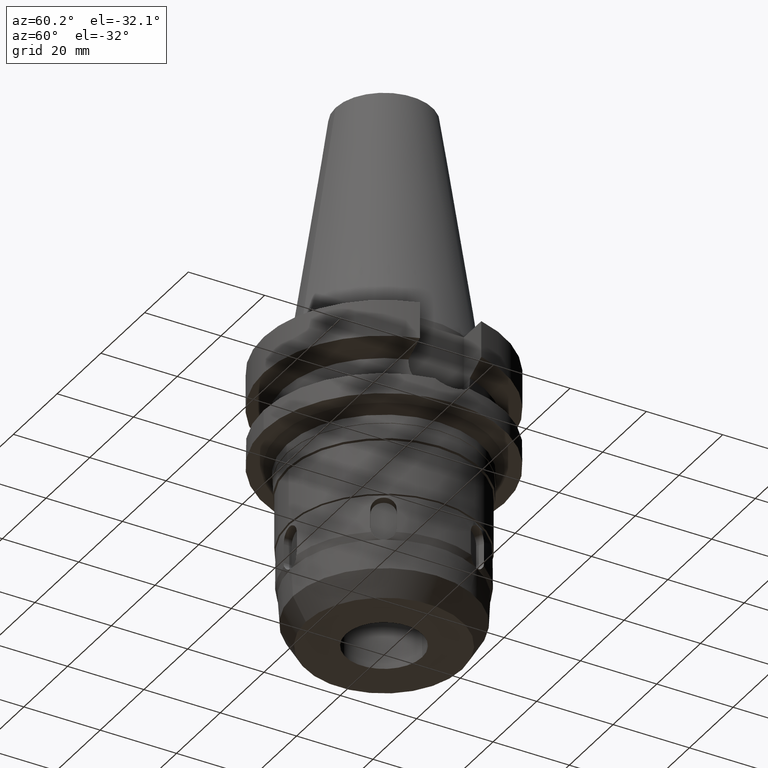
[diagram: clean part render]
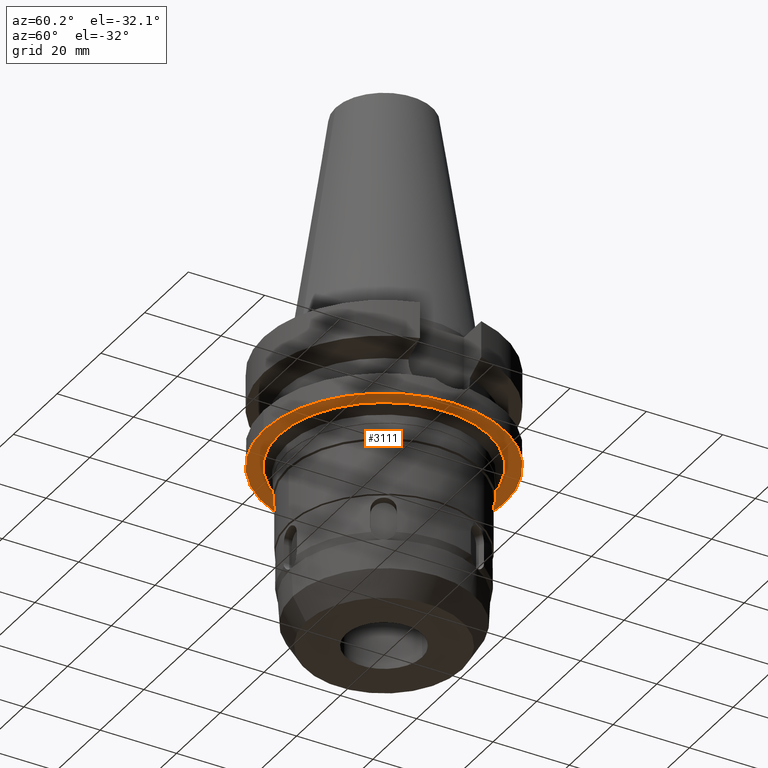
[diagram: same view with one face highlighted and labeled with its STEP entity id]
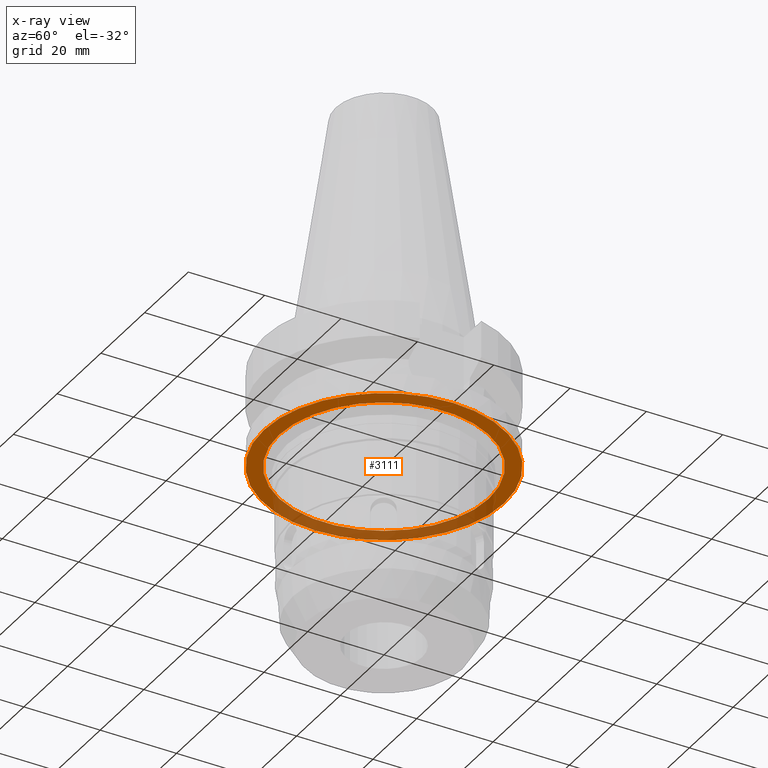
[diagram: x-ray of the same camera — body ghosted, the highlighted face saturated]
A machine part, auxiliary view. The second image highlights one B-rep face of the part: STEP entity #3111.
The next image is the same camera in x-ray: the body ghosted, the highlighted face saturated — about 32% of this face is hidden behind the body in this view.
In plain terms, the highlighted planar face has unit normal (0, 0, -1).
Its self-contained STEP definition (entity closure, byte-faithful):
#628=CARTESIAN_POINT('',(0.E0,2.111536011090E-14,-2.7E1));
#629=DIRECTION('',(0.E0,0.E0,1.E0));
#630=DIRECTION('',(0.E0,-1.E0,0.E0));
#631=AXIS2_PLACEMENT_3D('',#628,#629,#630);
#636=CARTESIAN_POINT('',(0.E0,2.111536011090E-14,-2.7E1));
#637=DIRECTION('',(0.E0,0.E0,1.E0));
#638=DIRECTION('',(0.E0,1.E0,0.E0));
#639=AXIS2_PLACEMENT_3D('',#636,#637,#638);
#644=CARTESIAN_POINT('',(0.E0,0.E0,-2.7E1));
#645=DIRECTION('',(0.E0,0.E0,-1.E0));
#646=DIRECTION('',(0.E0,-1.E0,0.E0));
#647=AXIS2_PLACEMENT_3D('',#644,#645,#646);
#652=CARTESIAN_POINT('',(0.E0,0.E0,-2.7E1));
#653=DIRECTION('',(0.E0,0.E0,-1.E0));
#654=DIRECTION('',(0.E0,1.E0,0.E0));
#655=AXIS2_PLACEMENT_3D('',#652,#653,#654);
#2544=CARTESIAN_POINT('',(0.E0,2.75E1,-2.7E1));
#2545=VERTEX_POINT('',#2544);
#2546=CARTESIAN_POINT('',(0.E0,-2.75E1,-2.7E1));
#2547=VERTEX_POINT('',#2546);
#2548=CARTESIAN_POINT('',(0.E0,-3.15E1,-2.7E1));
#2549=CARTESIAN_POINT('',(0.E0,3.15E1,-2.7E1));
#2550=VERTEX_POINT('',#2548);
#2551=VERTEX_POINT('',#2549);
#3096=CARTESIAN_POINT('',(0.E0,0.E0,-2.7E1));
#3097=DIRECTION('',(0.E0,0.E0,-1.E0));
#3098=DIRECTION('',(0.E0,-1.E0,0.E0));
#3099=AXIS2_PLACEMENT_3D('',#3096,#3097,#3098);
#3100=PLANE('',#3099);
#3101=ORIENTED_EDGE('',*,*,#3058,.T.);
#3102=ORIENTED_EDGE('',*,*,#3089,.T.);
#3103=EDGE_LOOP('',(#3101,#3102));
#3104=FACE_OUTER_BOUND('',#3103,.F.);
#3106=ORIENTED_EDGE('',*,*,#3105,.T.);
#3108=ORIENTED_EDGE('',*,*,#3107,.T.);
#3109=EDGE_LOOP('',(#3106,#3108));
#3110=FACE_BOUND('',#3109,.F.);
#632=CIRCLE('',#631,3.15E1);
#640=CIRCLE('',#639,3.15E1);
#648=CIRCLE('',#647,2.75E1);
#656=CIRCLE('',#655,2.75E1);
#3058=EDGE_CURVE('',#2550,#2551,#632,.T.);
#3089=EDGE_CURVE('',#2551,#2550,#640,.T.);
#3105=EDGE_CURVE('',#2547,#2545,#648,.T.);
#3107=EDGE_CURVE('',#2545,#2547,#656,.T.);
#3111=ADVANCED_FACE('',(#3104,#3110),#3100,.T.);